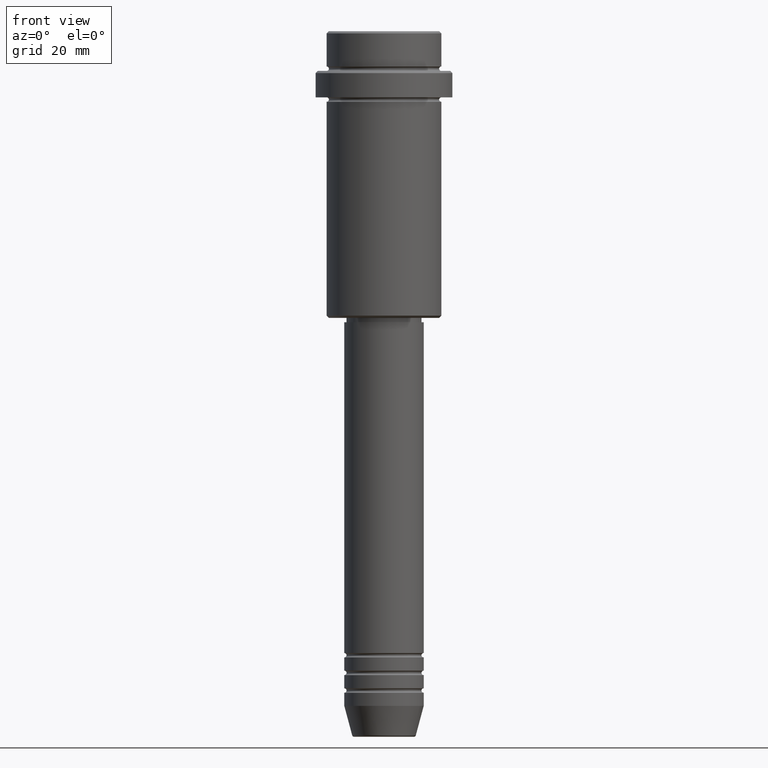
[diagram: clean part render]
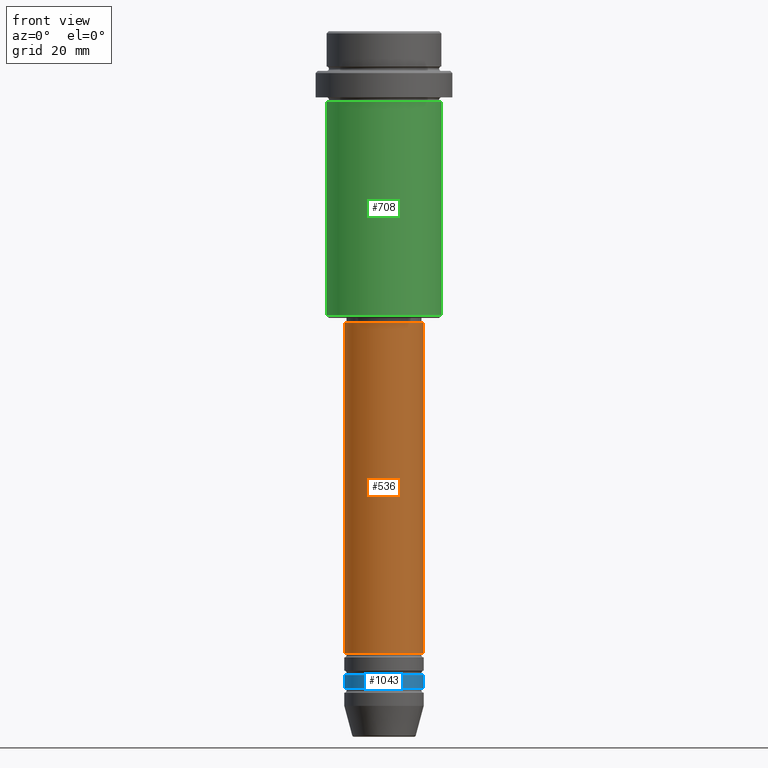
[diagram: same view with three faces highlighted in distinct colors, each labeled with its STEP entity id]
A machine part, front view with three faces highlighted in distinct colors.
Their STEP definitions:

[orange] entity #536 — the highlighted cylindrical surface (partial cylindrical patch) has radius 9 mm, axis along (-0, -0, 1).
#101 = ORIENTED_EDGE ( 'NONE', *, *, #673, .T. ) ;
#117 = EDGE_LOOP ( 'NONE', ( #978, #101, #1101, #773 ) ) ;
#141 = VERTEX_POINT ( 'NONE', #841 ) ;
#173 = AXIS2_PLACEMENT_3D ( 'NONE', #1096, #640, #1069 ) ;
#248 = VECTOR ( 'NONE', #374, 1000.000000000000000 ) ;
#278 = CYLINDRICAL_SURFACE ( 'NONE', #702, 9.000000000000001776 ) ;
#369 = LINE ( 'NONE', #916, #248 ) ;
#374 = DIRECTION ( 'NONE',  ( -0.000000000000000000, -0.000000000000000000, 1.000000000000000000 ) ) ;
#496 = CARTESIAN_POINT ( 'NONE',  ( 0.000000000000000000, 0.000000000000000000, 0.000000000000000000 ) ) ;
#536 = ADVANCED_FACE ( 'NONE', ( #1161 ), #278, .T. ) ;
#556 = CARTESIAN_POINT ( 'NONE',  ( 0.000000000000000000, 0.000000000000000000, -66.00000000000000000 ) ) ;
#640 = DIRECTION ( 'NONE',  ( -0.000000000000000000, -0.000000000000000000, 1.000000000000000000 ) ) ;
#645 = DIRECTION ( 'NONE',  ( -0.000000000000000000, -0.000000000000000000, 1.000000000000000000 ) ) ;
#673 = EDGE_CURVE ( 'NONE', #141, #1050, #1160, .T. ) ;
#702 = AXIS2_PLACEMENT_3D ( 'NONE', #496, #1369, #840 ) ;
#739 = LINE ( 'NONE', #1304, #1115 ) ;
#748 = EDGE_CURVE ( 'NONE', #1050, #1087, #739, .T. ) ;
#773 = ORIENTED_EDGE ( 'NONE', *, *, #1109, .F. ) ;
#796 = EDGE_CURVE ( 'NONE', #141, #1268, #369, .T. ) ;
#819 = CARTESIAN_POINT ( 'NONE',  ( 9.000000000000000000, 0.000000000000000000, -140.9999999999999147 ) ) ;
#840 = DIRECTION ( 'NONE',  ( 1.000000000000000000, 0.000000000000000000, 0.000000000000000000 ) ) ;
#841 = CARTESIAN_POINT ( 'NONE',  ( -9.000000000000000000, 1.102182119232617714E-15, -140.9999999999999147 ) ) ;
#916 = CARTESIAN_POINT ( 'NONE',  ( -9.000000000000001776, 1.102182119232617911E-15, 0.000000000000000000 ) ) ;
#956 = AXIS2_PLACEMENT_3D ( 'NONE', #556, #1303, #1292 ) ;
#978 = ORIENTED_EDGE ( 'NONE', *, *, #796, .F. ) ;
#1050 = VERTEX_POINT ( 'NONE', #819 ) ;
#1069 = DIRECTION ( 'NONE',  ( 1.000000000000000000, 0.000000000000000000, 0.000000000000000000 ) ) ;
#1087 = VERTEX_POINT ( 'NONE', #1175 ) ;
#1096 = CARTESIAN_POINT ( 'NONE',  ( 0.000000000000000000, 0.000000000000000000, -140.9999999999999147 ) ) ;
#1101 = ORIENTED_EDGE ( 'NONE', *, *, #748, .T. ) ;
#1107 = CARTESIAN_POINT ( 'NONE',  ( -9.000000000000001776, 1.102182119232617911E-15, -66.00000000000000000 ) ) ;
#1109 = EDGE_CURVE ( 'NONE', #1268, #1087, #1258, .T. ) ;
#1115 = VECTOR ( 'NONE', #645, 1000.000000000000000 ) ;
#1160 = CIRCLE ( 'NONE', #173, 9.000000000000000000 ) ;
#1161 = FACE_OUTER_BOUND ( 'NONE', #117, .T. ) ;
#1175 = CARTESIAN_POINT ( 'NONE',  ( 9.000000000000001776, 0.000000000000000000, -66.00000000000000000 ) ) ;
#1258 = CIRCLE ( 'NONE', #956, 9.000000000000001776 ) ;
#1268 = VERTEX_POINT ( 'NONE', #1107 ) ;
#1292 = DIRECTION ( 'NONE',  ( 1.000000000000000000, 0.000000000000000000, 0.000000000000000000 ) ) ;
#1303 = DIRECTION ( 'NONE',  ( -0.000000000000000000, -0.000000000000000000, 1.000000000000000000 ) ) ;
#1304 = CARTESIAN_POINT ( 'NONE',  ( 9.000000000000001776, 0.000000000000000000, 0.000000000000000000 ) ) ;
#1369 = DIRECTION ( 'NONE',  ( -0.000000000000000000, -0.000000000000000000, 1.000000000000000000 ) ) ;

[blue] entity #1043 — the highlighted cylindrical surface (partial cylindrical patch) has radius 9 mm, axis along (-0, -0, 1).
#2 = ORIENTED_EDGE ( 'NONE', *, *, #142, .T. ) ;
#142 = EDGE_CURVE ( 'NONE', #677, #316, #928, .T. ) ;
#162 = CARTESIAN_POINT ( 'NONE',  ( -9.000000000000000000, 1.102182119232617714E-15, 0.000000000000000000 ) ) ;
#172 = CIRCLE ( 'NONE', #882, 9.000000000000000000 ) ;
#174 = LINE ( 'NONE', #162, #251 ) ;
#199 = VERTEX_POINT ( 'NONE', #1162 ) ;
#203 = VECTOR ( 'NONE', #942, 1000.000000000000000 ) ;
#251 = VECTOR ( 'NONE', #1359, 1000.000000000000000 ) ;
#277 = AXIS2_PLACEMENT_3D ( 'NONE', #1368, #717, #387 ) ;
#285 = LINE ( 'NONE', #1145, #203 ) ;
#316 = VERTEX_POINT ( 'NONE', #649 ) ;
#375 = DIRECTION ( 'NONE',  ( -0.000000000000000000, -0.000000000000000000, 1.000000000000000000 ) ) ;
#376 = VERTEX_POINT ( 'NONE', #601 ) ;
#387 = DIRECTION ( 'NONE',  ( 1.000000000000000000, 0.000000000000000000, 0.000000000000000000 ) ) ;
#405 = DIRECTION ( 'NONE',  ( 1.000000000000000000, 0.000000000000000000, 0.000000000000000000 ) ) ;
#428 = ORIENTED_EDGE ( 'NONE', *, *, #470, .F. ) ;
#456 = ORIENTED_EDGE ( 'NONE', *, *, #1017, .T. ) ;
#470 = EDGE_CURVE ( 'NONE', #376, #199, #172, .T. ) ;
#495 = CYLINDRICAL_SURFACE ( 'NONE', #277, 9.000000000000000000 ) ;
#544 = EDGE_LOOP ( 'NONE', ( #671, #2, #456, #428 ) ) ;
#601 = CARTESIAN_POINT ( 'NONE',  ( -9.000000000000000000, 1.102182119232617714E-15, -145.9999999999999147 ) ) ;
#649 = CARTESIAN_POINT ( 'NONE',  ( 9.000000000000000000, 0.000000000000000000, -148.9999999999999147 ) ) ;
#671 = ORIENTED_EDGE ( 'NONE', *, *, #934, .F. ) ;
#677 = VERTEX_POINT ( 'NONE', #844 ) ;
#704 = DIRECTION ( 'NONE',  ( 1.000000000000000000, 0.000000000000000000, 0.000000000000000000 ) ) ;
#717 = DIRECTION ( 'NONE',  ( -0.000000000000000000, -0.000000000000000000, 1.000000000000000000 ) ) ;
#720 = CARTESIAN_POINT ( 'NONE',  ( 0.000000000000000000, 0.000000000000000000, -148.9999999999999147 ) ) ;
#838 = FACE_OUTER_BOUND ( 'NONE', #544, .T. ) ;
#844 = CARTESIAN_POINT ( 'NONE',  ( -9.000000000000000000, 1.102182119232617714E-15, -148.9999999999999147 ) ) ;
#882 = AXIS2_PLACEMENT_3D ( 'NONE', #1355, #375, #704 ) ;
#928 = CIRCLE ( 'NONE', #1341, 9.000000000000000000 ) ;
#934 = EDGE_CURVE ( 'NONE', #677, #376, #174, .T. ) ;
#942 = DIRECTION ( 'NONE',  ( -0.000000000000000000, -0.000000000000000000, 1.000000000000000000 ) ) ;
#1017 = EDGE_CURVE ( 'NONE', #316, #199, #285, .T. ) ;
#1043 = ADVANCED_FACE ( 'NONE', ( #838 ), #495, .T. ) ;
#1145 = CARTESIAN_POINT ( 'NONE',  ( 9.000000000000000000, 0.000000000000000000, 0.000000000000000000 ) ) ;
#1162 = CARTESIAN_POINT ( 'NONE',  ( 9.000000000000000000, 0.000000000000000000, -145.9999999999999147 ) ) ;
#1341 = AXIS2_PLACEMENT_3D ( 'NONE', #720, #1370, #405 ) ;
#1355 = CARTESIAN_POINT ( 'NONE',  ( 0.000000000000000000, 0.000000000000000000, -145.9999999999999147 ) ) ;
#1359 = DIRECTION ( 'NONE',  ( -0.000000000000000000, -0.000000000000000000, 1.000000000000000000 ) ) ;
#1368 = CARTESIAN_POINT ( 'NONE',  ( 0.000000000000000000, 0.000000000000000000, 0.000000000000000000 ) ) ;
#1370 = DIRECTION ( 'NONE',  ( -0.000000000000000000, -0.000000000000000000, 1.000000000000000000 ) ) ;

[green] entity #708 — the highlighted cylindrical surface (partial cylindrical patch) has radius 13 mm, axis along (-0, -0, 1).
#23 = AXIS2_PLACEMENT_3D ( 'NONE', #852, #451, #749 ) ;
#38 = DIRECTION ( 'NONE',  ( 1.000000000000000000, 0.000000000000000000, 0.000000000000000000 ) ) ;
#108 = CIRCLE ( 'NONE', #314, 13.00000000000000000 ) ;
#120 = FACE_OUTER_BOUND ( 'NONE', #1242, .T. ) ;
#125 = CARTESIAN_POINT ( 'NONE',  ( -13.00000000000000000, 1.592040838891559095E-15, -64.49999999999997158 ) ) ;
#143 = CARTESIAN_POINT ( 'NONE',  ( -13.00000000000000000, 1.592040838891559095E-15, -16.00000000000000000 ) ) ;
#222 = CYLINDRICAL_SURFACE ( 'NONE', #23, 13.00000000000000000 ) ;
#308 = ORIENTED_EDGE ( 'NONE', *, *, #724, .T. ) ;
#314 = AXIS2_PLACEMENT_3D ( 'NONE', #584, #1013, #38 ) ;
#340 = ORIENTED_EDGE ( 'NONE', *, *, #1072, .F. ) ;
#451 = DIRECTION ( 'NONE',  ( -0.000000000000000000, -0.000000000000000000, 1.000000000000000000 ) ) ;
#525 = CARTESIAN_POINT ( 'NONE',  ( -13.00000000000000000, 1.592040838891559095E-15, 0.000000000000000000 ) ) ;
#553 = VECTOR ( 'NONE', #661, 1000.000000000000000 ) ;
#561 = VERTEX_POINT ( 'NONE', #1146 ) ;
#577 = DIRECTION ( 'NONE',  ( -0.000000000000000000, -0.000000000000000000, 1.000000000000000000 ) ) ;
#581 = AXIS2_PLACEMENT_3D ( 'NONE', #672, #577, #583 ) ;
#583 = DIRECTION ( 'NONE',  ( -1.000000000000000000, 0.000000000000000000, 0.000000000000000000 ) ) ;
#584 = CARTESIAN_POINT ( 'NONE',  ( 0.000000000000000000, 0.000000000000000000, -16.00000000000000000 ) ) ;
#626 = CIRCLE ( 'NONE', #581, 13.00000000000000000 ) ;
#661 = DIRECTION ( 'NONE',  ( -0.000000000000000000, -0.000000000000000000, 1.000000000000000000 ) ) ;
#672 = CARTESIAN_POINT ( 'NONE',  ( 0.000000000000000000, 0.000000000000000000, -64.49999999999997158 ) ) ;
#705 = ORIENTED_EDGE ( 'NONE', *, *, #794, .F. ) ;
#708 = ADVANCED_FACE ( 'NONE', ( #120 ), #222, .T. ) ;
#724 = EDGE_CURVE ( 'NONE', #752, #561, #1294, .T. ) ;
#738 = LINE ( 'NONE', #525, #553 ) ;
#749 = DIRECTION ( 'NONE',  ( 1.000000000000000000, 0.000000000000000000, 0.000000000000000000 ) ) ;
#752 = VERTEX_POINT ( 'NONE', #1077 ) ;
#794 = EDGE_CURVE ( 'NONE', #830, #561, #108, .T. ) ;
#830 = VERTEX_POINT ( 'NONE', #143 ) ;
#852 = CARTESIAN_POINT ( 'NONE',  ( 0.000000000000000000, 0.000000000000000000, 0.000000000000000000 ) ) ;
#883 = VECTOR ( 'NONE', #1396, 1000.000000000000000 ) ;
#959 = CARTESIAN_POINT ( 'NONE',  ( 13.00000000000000000, 0.000000000000000000, 0.000000000000000000 ) ) ;
#1013 = DIRECTION ( 'NONE',  ( -0.000000000000000000, -0.000000000000000000, 1.000000000000000000 ) ) ;
#1072 = EDGE_CURVE ( 'NONE', #1301, #830, #738, .T. ) ;
#1077 = CARTESIAN_POINT ( 'NONE',  ( 13.00000000000000000, 0.000000000000000000, -64.49999999999997158 ) ) ;
#1146 = CARTESIAN_POINT ( 'NONE',  ( 13.00000000000000000, 0.000000000000000000, -16.00000000000000000 ) ) ;
#1242 = EDGE_LOOP ( 'NONE', ( #340, #1314, #308, #705 ) ) ;
#1260 = EDGE_CURVE ( 'NONE', #1301, #752, #626, .T. ) ;
#1294 = LINE ( 'NONE', #959, #883 ) ;
#1301 = VERTEX_POINT ( 'NONE', #125 ) ;
#1314 = ORIENTED_EDGE ( 'NONE', *, *, #1260, .T. ) ;
#1396 = DIRECTION ( 'NONE',  ( -0.000000000000000000, -0.000000000000000000, 1.000000000000000000 ) ) ;